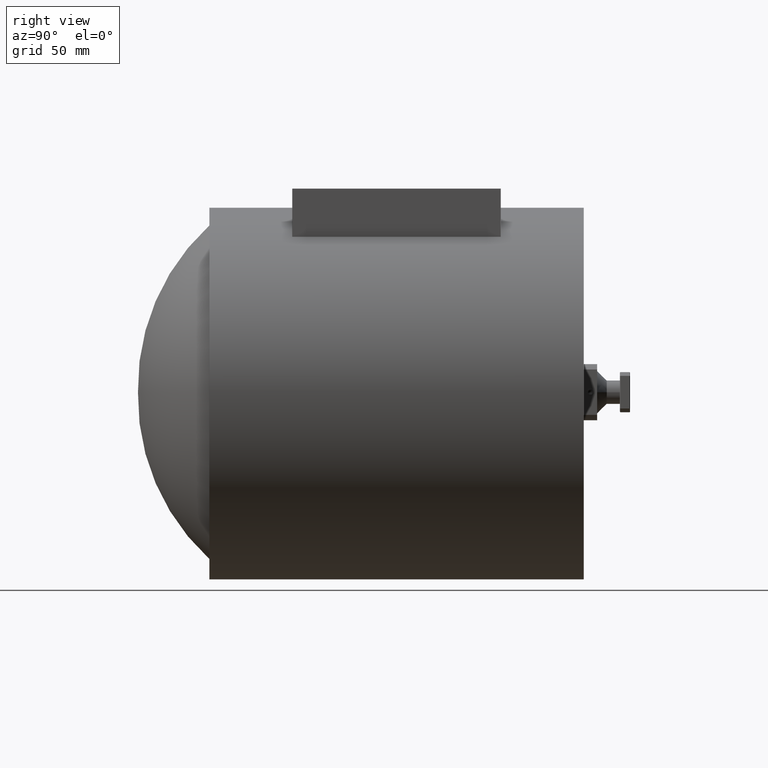
[diagram: clean part render]
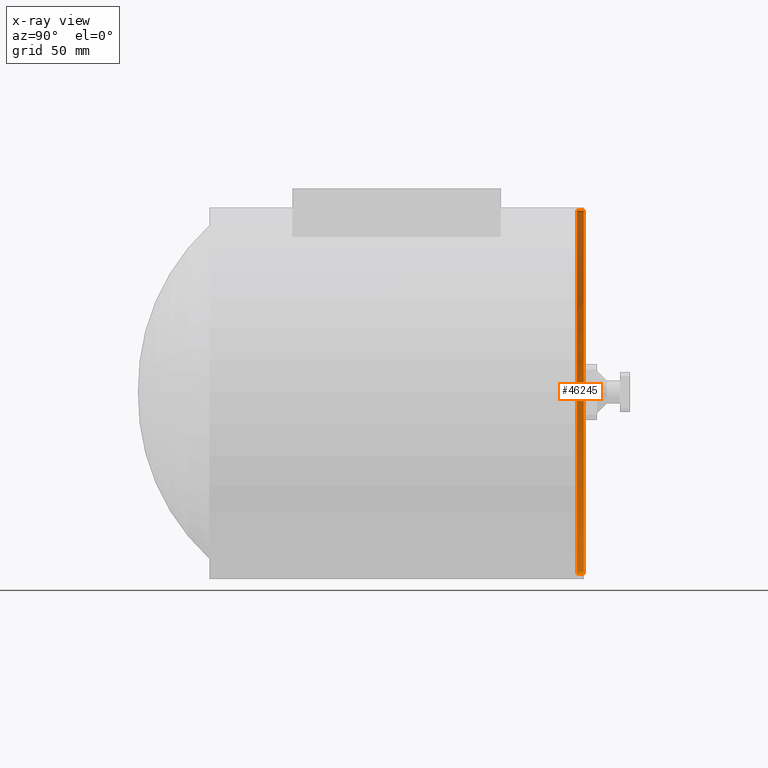
[diagram: x-ray — body ghosted, one internal face saturated and labeled with its STEP entity id]
A machine part, right view, then the same camera in x-ray: the body is ghosted and one INTERNAL B-rep face — a face not visible from any outside direction — is saturated and labeled: STEP entity #46245.
In plain terms, the highlighted cylindrical surface (partial cylindrical patch) has radius 86.36 mm, axis along (-0, 1, -0).
Its self-contained STEP definition (entity closure, byte-faithful):
#2623 = AXIS2_PLACEMENT_3D ( 'NONE', #20073, #19647, #51111 ) ;
#3407 = VECTOR ( 'NONE', #66236, 39.37007874015748100 ) ;
#3776 = VERTEX_POINT ( 'NONE', #19508 ) ;
#5499 = CARTESIAN_POINT ( 'NONE',  ( -1.570761672972037500, 4.419377155374181000, 4.198720342233508000 ) ) ;
#8358 = AXIS2_PLACEMENT_3D ( 'NONE', #34701, #29312, #8536 ) ;
#8536 = DIRECTION ( 'NONE',  ( 0.0000000000000000000, 0.0000000000000000000, -1.000000000000000000 ) ) ;
#9870 = DIRECTION ( 'NONE',  ( 0.0000000000000000000, 0.0000000000000000000, -1.000000000000000000 ) ) ;
#9881 = EDGE_CURVE ( 'NONE', #45661, #3776, #17084, .T. ) ;
#13283 = EDGE_LOOP ( 'NONE', ( #20580, #16326, #53240, #38173 ) ) ;
#16287 = DIRECTION ( 'NONE',  ( -0.0000000000000000000, 1.000000000000000000, -0.0000000000000000000 ) ) ;
#16326 = ORIENTED_EDGE ( 'NONE', *, *, #9881, .T. ) ;
#16681 = CYLINDRICAL_SURFACE ( 'NONE', #2623, 3.399999999999999900 ) ;
#17084 = LINE ( 'NONE', #35146, #3407 ) ;
#19015 = CARTESIAN_POINT ( 'NONE',  ( -1.570761672972037500, 4.419377155374181000, 4.198720342233508000 ) ) ;
#19508 = CARTESIAN_POINT ( 'NONE',  ( -1.570761672972036800, 4.544377155374181900, -2.601279657766491400 ) ) ;
#19647 = DIRECTION ( 'NONE',  ( -0.0000000000000000000, 1.000000000000000000, -0.0000000000000000000 ) ) ;
#20073 = CARTESIAN_POINT ( 'NONE',  ( -1.570761672972037500, 4.419377155374181000, 0.7987203422335083000 ) ) ;
#20580 = ORIENTED_EDGE ( 'NONE', *, *, #32224, .T. ) ;
#24288 = CIRCLE ( 'NONE', #40416, 3.399999999999999900 ) ;
#29312 = DIRECTION ( 'NONE',  ( -0.0000000000000000000, -1.000000000000000000, -0.0000000000000000000 ) ) ;
#30141 = DIRECTION ( 'NONE',  ( -0.0000000000000000000, -1.000000000000000000, -0.0000000000000000000 ) ) ;
#30863 = EDGE_CURVE ( 'NONE', #65240, #46234, #36742, .T. ) ;
#32224 = EDGE_CURVE ( 'NONE', #65240, #45661, #62256, .T. ) ;
#34701 = CARTESIAN_POINT ( 'NONE',  ( -1.570761672972037500, 4.419377155374181000, 0.7987203422335083000 ) ) ;
#34986 = CARTESIAN_POINT ( 'NONE',  ( -1.570761672972036800, 4.419377155374181000, -2.601279657766491400 ) ) ;
#35146 = CARTESIAN_POINT ( 'NONE',  ( -1.570761672972036800, 4.419377155374181000, -2.601279657766491400 ) ) ;
#35480 = CARTESIAN_POINT ( 'NONE',  ( -1.570761672972037500, 4.544377155374181900, 4.198720342233508000 ) ) ;
#36742 = LINE ( 'NONE', #5499, #55110 ) ;
#38173 = ORIENTED_EDGE ( 'NONE', *, *, #30863, .F. ) ;
#38912 = EDGE_CURVE ( 'NONE', #46234, #3776, #24288, .T. ) ;
#40416 = AXIS2_PLACEMENT_3D ( 'NONE', #45399, #30141, #9870 ) ;
#45399 = CARTESIAN_POINT ( 'NONE',  ( -1.570761672972037500, 4.544377155374181900, 0.7987203422335083000 ) ) ;
#45661 = VERTEX_POINT ( 'NONE', #34986 ) ;
#46234 = VERTEX_POINT ( 'NONE', #35480 ) ;
#46245 = ADVANCED_FACE ( 'NONE', ( #52597 ), #16681, .F. ) ;
#51111 = DIRECTION ( 'NONE',  ( 0.0000000000000000000, 0.0000000000000000000, 1.000000000000000000 ) ) ;
#52597 = FACE_OUTER_BOUND ( 'NONE', #13283, .T. ) ;
#53240 = ORIENTED_EDGE ( 'NONE', *, *, #38912, .F. ) ;
#55110 = VECTOR ( 'NONE', #16287, 39.37007874015748100 ) ;
#62256 = CIRCLE ( 'NONE', #8358, 3.399999999999999900 ) ;
#65240 = VERTEX_POINT ( 'NONE', #19015 ) ;
#66236 = DIRECTION ( 'NONE',  ( -0.0000000000000000000, 1.000000000000000000, -0.0000000000000000000 ) ) ;